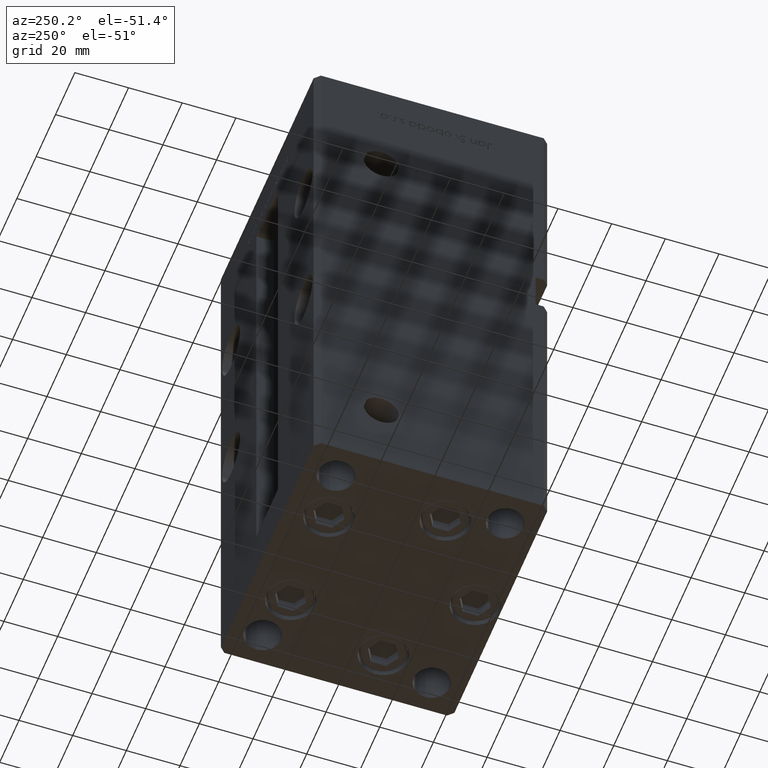
[diagram: clean part render]
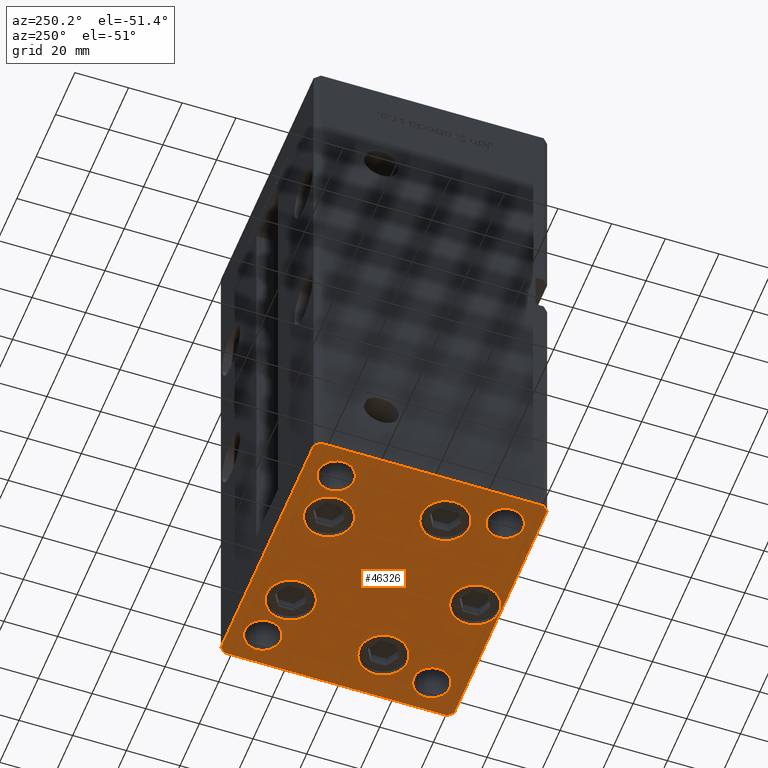
[diagram: same view with one face highlighted and labeled with its STEP entity id]
A machine part, auxiliary view. The second image highlights one B-rep face of the part: STEP entity #46326.
In plain terms, the highlighted planar face has unit normal (0, 0, -1).
Its self-contained STEP definition (entity closure, byte-faithful):
#475 = EDGE_CURVE ( 'NONE', #3109, #52060, #8247, .T. ) ;
#696 = VECTOR ( 'NONE', #11930, 1000.000000000000000 ) ;
#1333 = EDGE_CURVE ( 'NONE', #39524, #7485, #22001, .T. ) ;
#1503 = DIRECTION ( 'NONE',  ( 0.7071067811865474617, -0.7071067811865474617, 0.000000000000000000 ) ) ;
#1707 = VECTOR ( 'NONE', #17261, 1000.000000000000000 ) ;
#1717 = EDGE_CURVE ( 'NONE', #11860, #27413, #8325, .T. ) ;
#1846 = CARTESIAN_POINT ( 'NONE',  ( 19.82068048781373193, 27.62500000000000000, 0.000000000000000000 ) ) ;
#2484 = FACE_BOUND ( 'NONE', #25498, .T. ) ;
#2563 = EDGE_CURVE ( 'NONE', #41122, #20947, #21209, .T. ) ;
#2718 = DIRECTION ( 'NONE',  ( 0.000000000000000000, -0.000000000000000000, -1.000000000000000000 ) ) ;
#2742 = FACE_BOUND ( 'NONE', #52879, .T. ) ;
#2824 = AXIS2_PLACEMENT_3D ( 'NONE', #31973, #6681, #3438 ) ;
#3005 = PLANE ( 'NONE',  #9670 ) ;
#3054 = ORIENTED_EDGE ( 'NONE', *, *, #47745, .T. ) ;
#3109 = VERTEX_POINT ( 'NONE', #26250 ) ;
#3166 = EDGE_CURVE ( 'NONE', #52738, #37018, #22742, .T. ) ;
#3438 = DIRECTION ( 'NONE',  ( 1.000000000000000000, 0.000000000000000000, 0.000000000000000000 ) ) ;
#3516 = VERTEX_POINT ( 'NONE', #14806 ) ;
#3960 = EDGE_LOOP ( 'NONE', ( #33991, #52278 ) ) ;
#3971 = EDGE_LOOP ( 'NONE', ( #49308, #9066 ) ) ;
#4000 = DIRECTION ( 'NONE',  ( 1.000000000000000000, 0.000000000000000000, 0.000000000000000000 ) ) ;
#4204 = CARTESIAN_POINT ( 'NONE',  ( 44.75000000000000000, 31.49999999999999289, 0.000000000000000000 ) ) ;
#4363 = CARTESIAN_POINT ( 'NONE',  ( -19.82068048781373903, 27.62499999999999645, 0.000000000000000000 ) ) ;
#4811 = CARTESIAN_POINT ( 'NONE',  ( 19.82068048781373193, 27.62500000000000000, 0.000000000000000000 ) ) ;
#5110 = DIRECTION ( 'NONE',  ( 1.000000000000000000, 0.000000000000000000, 0.000000000000000000 ) ) ;
#5323 = ORIENTED_EDGE ( 'NONE', *, *, #22522, .T. ) ;
#5354 = EDGE_CURVE ( 'NONE', #39382, #49912, #6658, .T. ) ;
#5387 = DIRECTION ( 'NONE',  ( 0.000000000000000000, -0.000000000000000000, -1.000000000000000000 ) ) ;
#5629 = CARTESIAN_POINT ( 'NONE',  ( -32.05550741379015278, -11.33333333333333925, 0.000000000000000000 ) ) ;
#5780 = AXIS2_PLACEMENT_3D ( 'NONE', #4363, #20788, #44990 ) ;
#5833 = CIRCLE ( 'NONE', #10138, 6.749999999999999112 ) ;
#5885 = VERTEX_POINT ( 'NONE', #45336 ) ;
#6415 = DIRECTION ( 'NONE',  ( 0.000000000000000000, -0.000000000000000000, -1.000000000000000000 ) ) ;
#6452 = DIRECTION ( 'NONE',  ( 0.000000000000000000, -0.000000000000000000, -1.000000000000000000 ) ) ;
#6588 = EDGE_CURVE ( 'NONE', #49912, #39382, #28186, .T. ) ;
#6658 = CIRCLE ( 'NONE', #5780, 9.000000000000000000 ) ;
#6681 = DIRECTION ( 'NONE',  ( 0.000000000000000000, -0.000000000000000000, -1.000000000000000000 ) ) ;
#6802 = LINE ( 'NONE', #10837, #696 ) ;
#6842 = VECTOR ( 'NONE', #9433, 1000.000000000000000 ) ;
#6870 = CARTESIAN_POINT ( 'NONE',  ( -50.00000000000000000, -41.50000000000000000, 0.000000000000000000 ) ) ;
#6912 = EDGE_CURVE ( 'NONE', #5885, #40963, #18967, .T. ) ;
#6919 = DIRECTION ( 'NONE',  ( 0.000000000000000000, -0.000000000000000000, -1.000000000000000000 ) ) ;
#7055 = FACE_OUTER_BOUND ( 'NONE', #17440, .T. ) ;
#7322 = CARTESIAN_POINT ( 'NONE',  ( 0.000000000000000000, 0.000000000000000000, 0.000000000000000000 ) ) ;
#7485 = VERTEX_POINT ( 'NONE', #21323 ) ;
#7558 = CARTESIAN_POINT ( 'NONE',  ( -23.05550741379014923, -11.33333333333333748, 0.000000000000000000 ) ) ;
#7562 = DIRECTION ( 'NONE',  ( 1.000000000000000000, 0.000000000000000000, 0.000000000000000000 ) ) ;
#7857 = EDGE_CURVE ( 'NONE', #37018, #30485, #12869, .T. ) ;
#7899 = ORIENTED_EDGE ( 'NONE', *, *, #6912, .T. ) ;
#8247 = CIRCLE ( 'NONE', #9148, 9.000000000000000000 ) ;
#8325 = CIRCLE ( 'NONE', #38357, 8.999999999999998224 ) ;
#8484 = VECTOR ( 'NONE', #21464, 1000.000000000000000 ) ;
#8512 = CARTESIAN_POINT ( 'NONE',  ( 47.99999999999999289, -43.50000000000001421, 0.000000000000000000 ) ) ;
#8650 = CIRCLE ( 'NONE', #42139, 6.749999999999999112 ) ;
#8667 = DIRECTION ( 'NONE',  ( -0.000000000000000000, 0.000000000000000000, 1.000000000000000000 ) ) ;
#8834 = EDGE_CURVE ( 'NONE', #10949, #31789, #29150, .T. ) ;
#9024 = CARTESIAN_POINT ( 'NONE',  ( 41.05550741379015278, -11.33333333333332860, 0.000000000000000000 ) ) ;
#9066 = ORIENTED_EDGE ( 'NONE', *, *, #475, .T. ) ;
#9148 = AXIS2_PLACEMENT_3D ( 'NONE', #44426, #2718, #7562 ) ;
#9371 = ORIENTED_EDGE ( 'NONE', *, *, #29681, .T. ) ;
#9433 = DIRECTION ( 'NONE',  ( 0.7071067811865463515, 0.7071067811865487940, 0.000000000000000000 ) ) ;
#9579 = VERTEX_POINT ( 'NONE', #25046 ) ;
#9594 = LINE ( 'NONE', #34337, #13415 ) ;
#9669 = DIRECTION ( 'NONE',  ( -0.000000000000000000, 0.000000000000000000, 1.000000000000000000 ) ) ;
#9670 = AXIS2_PLACEMENT_3D ( 'NONE', #7322, #47693, #35575 ) ;
#9673 = DIRECTION ( 'NONE',  ( 0.000000000000000000, -0.000000000000000000, -1.000000000000000000 ) ) ;
#9921 = CARTESIAN_POINT ( 'NONE',  ( -8.999999999999996447, -34.00000000000000000, 0.000000000000000000 ) ) ;
#10138 = AXIS2_PLACEMENT_3D ( 'NONE', #30187, #21851, #21593 ) ;
#10457 = DIRECTION ( 'NONE',  ( 1.000000000000000000, 0.000000000000000000, 0.000000000000000000 ) ) ;
#10458 = EDGE_CURVE ( 'NONE', #15043, #52738, #44554, .T. ) ;
#10788 = ORIENTED_EDGE ( 'NONE', *, *, #1333, .T. ) ;
#10837 = CARTESIAN_POINT ( 'NONE',  ( -48.00000000000000711, 43.49999999999996447, 0.000000000000000000 ) ) ;
#10949 = VERTEX_POINT ( 'NONE', #7558 ) ;
#11137 = EDGE_CURVE ( 'NONE', #34654, #15043, #46813, .T. ) ;
#11369 = FACE_BOUND ( 'NONE', #41315, .T. ) ;
#11796 = CIRCLE ( 'NONE', #19548, 9.000000000000000000 ) ;
#11860 = VERTEX_POINT ( 'NONE', #31001 ) ;
#11896 = DIRECTION ( 'NONE',  ( 0.000000000000000000, -0.000000000000000000, -1.000000000000000000 ) ) ;
#11930 = DIRECTION ( 'NONE',  ( -0.7071067811865463515, -0.7071067811865487940, 0.000000000000000000 ) ) ;
#11985 = CARTESIAN_POINT ( 'NONE',  ( 47.99999999999990763, 43.50000000000000000, 0.000000000000000000 ) ) ;
#12032 = EDGE_CURVE ( 'NONE', #33720, #34654, #45772, .T. ) ;
#12616 = EDGE_CURVE ( 'NONE', #36194, #34633, #52551, .T. ) ;
#12869 = LINE ( 'NONE', #38124, #8484 ) ;
#13415 = VECTOR ( 'NONE', #1503, 1000.000000000000114 ) ;
#13488 = CIRCLE ( 'NONE', #38405, 6.749999999999999112 ) ;
#13564 = CIRCLE ( 'NONE', #40162, 8.999999999999998224 ) ;
#13598 = AXIS2_PLACEMENT_3D ( 'NONE', #30906, #6415, #27394 ) ;
#13639 = DIRECTION ( 'NONE',  ( 1.000000000000000000, 0.000000000000000000, 0.000000000000000000 ) ) ;
#13922 = ORIENTED_EDGE ( 'NONE', *, *, #22760, .T. ) ;
#14249 = CARTESIAN_POINT ( 'NONE',  ( 47.99999999999999289, -43.50000000000001421, 0.000000000000000000 ) ) ;
#14403 = CARTESIAN_POINT ( 'NONE',  ( -50.00000000000000711, 41.49999999999995026, 0.000000000000000000 ) ) ;
#14806 = CARTESIAN_POINT ( 'NONE',  ( -44.75000000000000000, 31.50000000000000000, 0.000000000000000000 ) ) ;
#15043 = VERTEX_POINT ( 'NONE', #51443 ) ;
#15121 = CIRCLE ( 'NONE', #37501, 6.749999999999999112 ) ;
#15400 = EDGE_CURVE ( 'NONE', #31789, #10949, #32970, .T. ) ;
#16517 = ORIENTED_EDGE ( 'NONE', *, *, #8834, .T. ) ;
#16725 = CARTESIAN_POINT ( 'NONE',  ( -47.99999999999999289, -43.50000000000001421, 0.000000000000000000 ) ) ;
#17261 = DIRECTION ( 'NONE',  ( 1.000000000000000000, 0.000000000000000000, 0.000000000000000000 ) ) ;
#17440 = EDGE_LOOP ( 'NONE', ( #13922, #22405, #52745, #37897, #18681, #19882, #48124, #7899 ) ) ;
#18066 = ORIENTED_EDGE ( 'NONE', *, *, #27956, .F. ) ;
#18189 = CARTESIAN_POINT ( 'NONE',  ( 49.99999999999992184, 41.49999999999998579, 0.000000000000000000 ) ) ;
#18327 = CARTESIAN_POINT ( 'NONE',  ( -28.82068048781373548, 27.62499999999999645, 0.000000000000000000 ) ) ;
#18681 = ORIENTED_EDGE ( 'NONE', *, *, #3166, .T. ) ;
#18967 = LINE ( 'NONE', #14403, #53106 ) ;
#19222 = DIRECTION ( 'NONE',  ( 0.000000000000000000, -0.000000000000000000, -1.000000000000000000 ) ) ;
#19548 = AXIS2_PLACEMENT_3D ( 'NONE', #41894, #33824, #13639 ) ;
#19622 = AXIS2_PLACEMENT_3D ( 'NONE', #52581, #19222, #44768 ) ;
#19882 = ORIENTED_EDGE ( 'NONE', *, *, #7857, .T. ) ;
#19963 = DIRECTION ( 'NONE',  ( 1.000000000000000000, 0.000000000000000000, 0.000000000000000000 ) ) ;
#20186 = CARTESIAN_POINT ( 'NONE',  ( -44.74999999999999289, -31.50000000000000000, 0.000000000000000000 ) ) ;
#20788 = DIRECTION ( 'NONE',  ( 0.000000000000000000, -0.000000000000000000, -1.000000000000000000 ) ) ;
#20947 = VERTEX_POINT ( 'NONE', #33054 ) ;
#21013 = ORIENTED_EDGE ( 'NONE', *, *, #25813, .F. ) ;
#21209 = CIRCLE ( 'NONE', #50435, 9.000000000000001776 ) ;
#21323 = CARTESIAN_POINT ( 'NONE',  ( -31.24999999999999289, -31.50000000000000000, 0.000000000000000000 ) ) ;
#21464 = DIRECTION ( 'NONE',  ( -1.000000000000000000, -3.614007241618350743E-16, 0.000000000000000000 ) ) ;
#21593 = DIRECTION ( 'NONE',  ( 1.000000000000000000, 0.000000000000000000, 0.000000000000000000 ) ) ;
#21595 = ORIENTED_EDGE ( 'NONE', *, *, #12616, .F. ) ;
#21851 = DIRECTION ( 'NONE',  ( -0.000000000000000000, 0.000000000000000000, 1.000000000000000000 ) ) ;
#22001 = CIRCLE ( 'NONE', #24565, 6.749999999999999112 ) ;
#22302 = CARTESIAN_POINT ( 'NONE',  ( 38.00000000000000000, 31.49999999999999289, 0.000000000000000000 ) ) ;
#22405 = ORIENTED_EDGE ( 'NONE', *, *, #12032, .T. ) ;
#22522 = EDGE_CURVE ( 'NONE', #41328, #9579, #15121, .T. ) ;
#22742 = LINE ( 'NONE', #18189, #50470 ) ;
#22760 = EDGE_CURVE ( 'NONE', #40963, #33720, #9594, .T. ) ;
#24007 = FACE_BOUND ( 'NONE', #3971, .T. ) ;
#24017 = CARTESIAN_POINT ( 'NONE',  ( 31.25000000000000000, -31.49999999999999289, 0.000000000000000000 ) ) ;
#24565 = AXIS2_PLACEMENT_3D ( 'NONE', #48482, #11896, #19963 ) ;
#24772 = CIRCLE ( 'NONE', #19622, 6.749999999999999112 ) ;
#25046 = CARTESIAN_POINT ( 'NONE',  ( 44.75000000000000000, -31.49999999999999289, 0.000000000000000000 ) ) ;
#25078 = CARTESIAN_POINT ( 'NONE',  ( 38.00000000000000000, 31.49999999999999289, 0.000000000000000000 ) ) ;
#25106 = ORIENTED_EDGE ( 'NONE', *, *, #34222, .T. ) ;
#25498 = EDGE_LOOP ( 'NONE', ( #21013, #21595 ) ) ;
#25661 = CIRCLE ( 'NONE', #39384, 9.000000000000001776 ) ;
#25703 = EDGE_LOOP ( 'NONE', ( #28680, #18066 ) ) ;
#25813 = EDGE_CURVE ( 'NONE', #34633, #36194, #13488, .T. ) ;
#26250 = CARTESIAN_POINT ( 'NONE',  ( 9.000000000000003553, -34.00000000000000000, 0.000000000000000000 ) ) ;
#27129 = EDGE_CURVE ( 'NONE', #52060, #3109, #11796, .T. ) ;
#27394 = DIRECTION ( 'NONE',  ( 1.000000000000000000, 0.000000000000000000, 0.000000000000000000 ) ) ;
#27413 = VERTEX_POINT ( 'NONE', #40502 ) ;
#27605 = DIRECTION ( 'NONE',  ( -1.003213576468515193E-15, 1.000000000000000000, 0.000000000000000000 ) ) ;
#27640 = CARTESIAN_POINT ( 'NONE',  ( 38.00000000000000000, -31.49999999999999289, 0.000000000000000000 ) ) ;
#27712 = EDGE_CURVE ( 'NONE', #30485, #5885, #6802, .T. ) ;
#27956 = EDGE_CURVE ( 'NONE', #3516, #52210, #5833, .T. ) ;
#28186 = CIRCLE ( 'NONE', #13598, 9.000000000000000000 ) ;
#28680 = ORIENTED_EDGE ( 'NONE', *, *, #50322, .F. ) ;
#29034 = DIRECTION ( 'NONE',  ( 0.000000000000000000, -0.000000000000000000, -1.000000000000000000 ) ) ;
#29150 = CIRCLE ( 'NONE', #36003, 9.000000000000001776 ) ;
#29681 = EDGE_CURVE ( 'NONE', #7485, #39524, #24772, .T. ) ;
#30180 = ORIENTED_EDGE ( 'NONE', *, *, #6588, .T. ) ;
#30187 = CARTESIAN_POINT ( 'NONE',  ( -38.00000000000000000, 31.50000000000000000, 0.000000000000000000 ) ) ;
#30485 = VERTEX_POINT ( 'NONE', #37906 ) ;
#30906 = CARTESIAN_POINT ( 'NONE',  ( -19.82068048781373903, 27.62499999999999645, 0.000000000000000000 ) ) ;
#31001 = CARTESIAN_POINT ( 'NONE',  ( 10.82068048781373193, 27.62500000000000000, 0.000000000000000000 ) ) ;
#31275 = FACE_BOUND ( 'NONE', #39848, .T. ) ;
#31731 = CARTESIAN_POINT ( 'NONE',  ( 32.05550741379015278, -11.33333333333333037, 0.000000000000000000 ) ) ;
#31785 = EDGE_CURVE ( 'NONE', #27413, #11860, #13564, .T. ) ;
#31789 = VERTEX_POINT ( 'NONE', #42234 ) ;
#31809 = FACE_BOUND ( 'NONE', #25703, .T. ) ;
#31973 = CARTESIAN_POINT ( 'NONE',  ( -32.05550741379015278, -11.33333333333333925, 0.000000000000000000 ) ) ;
#32177 = CARTESIAN_POINT ( 'NONE',  ( 50.00000000000000000, -41.49999999999999289, 0.000000000000000000 ) ) ;
#32970 = CIRCLE ( 'NONE', #2824, 9.000000000000001776 ) ;
#32992 = DIRECTION ( 'NONE',  ( 0.000000000000000000, -0.000000000000000000, -1.000000000000000000 ) ) ;
#32998 = ORIENTED_EDGE ( 'NONE', *, *, #15400, .T. ) ;
#33054 = CARTESIAN_POINT ( 'NONE',  ( 23.05550741379014923, -11.33333333333333037, 0.000000000000000000 ) ) ;
#33720 = VERTEX_POINT ( 'NONE', #41527 ) ;
#33824 = DIRECTION ( 'NONE',  ( 0.000000000000000000, -0.000000000000000000, -1.000000000000000000 ) ) ;
#33902 = DIRECTION ( 'NONE',  ( 1.000000000000000000, 0.000000000000000000, 0.000000000000000000 ) ) ;
#33991 = ORIENTED_EDGE ( 'NONE', *, *, #1717, .T. ) ;
#34178 = CARTESIAN_POINT ( 'NONE',  ( 38.00000000000000000, -31.49999999999999289, 0.000000000000000000 ) ) ;
#34222 = EDGE_CURVE ( 'NONE', #20947, #41122, #25661, .T. ) ;
#34337 = CARTESIAN_POINT ( 'NONE',  ( -50.00000000000000000, -41.50000000000000000, 0.000000000000000000 ) ) ;
#34438 = DIRECTION ( 'NONE',  ( 1.000000000000000000, 0.000000000000000000, 0.000000000000000000 ) ) ;
#34491 = AXIS2_PLACEMENT_3D ( 'NONE', #37103, #36295, #44634 ) ;
#34591 = DIRECTION ( 'NONE',  ( -0.7071067811865474617, 0.7071067811865474617, 0.000000000000000000 ) ) ;
#34633 = VERTEX_POINT ( 'NONE', #4204 ) ;
#34654 = VERTEX_POINT ( 'NONE', #8512 ) ;
#35370 = DIRECTION ( 'NONE',  ( 8.360113137237628665E-17, -1.000000000000000000, 0.000000000000000000 ) ) ;
#35575 = DIRECTION ( 'NONE',  ( 1.000000000000000000, 0.000000000000000000, 0.000000000000000000 ) ) ;
#35976 = DIRECTION ( 'NONE',  ( 1.000000000000000000, 0.000000000000000000, 0.000000000000000000 ) ) ;
#36003 = AXIS2_PLACEMENT_3D ( 'NONE', #5629, #47061, #33902 ) ;
#36194 = VERTEX_POINT ( 'NONE', #45182 ) ;
#36295 = DIRECTION ( 'NONE',  ( -0.000000000000000000, 0.000000000000000000, 1.000000000000000000 ) ) ;
#36380 = FACE_BOUND ( 'NONE', #46749, .T. ) ;
#37018 = VERTEX_POINT ( 'NONE', #11985 ) ;
#37103 = CARTESIAN_POINT ( 'NONE',  ( -38.00000000000000000, 31.50000000000000000, 0.000000000000000000 ) ) ;
#37501 = AXIS2_PLACEMENT_3D ( 'NONE', #27640, #6919, #35976 ) ;
#37897 = ORIENTED_EDGE ( 'NONE', *, *, #10458, .T. ) ;
#37906 = CARTESIAN_POINT ( 'NONE',  ( -48.00000000000000711, 43.49999999999996447, 0.000000000000000000 ) ) ;
#38124 = CARTESIAN_POINT ( 'NONE',  ( 47.99999999999990763, 43.50000000000000000, 0.000000000000000000 ) ) ;
#38357 = AXIS2_PLACEMENT_3D ( 'NONE', #4811, #29034, #4000 ) ;
#38405 = AXIS2_PLACEMENT_3D ( 'NONE', #25078, #8667, #49839 ) ;
#39382 = VERTEX_POINT ( 'NONE', #18327 ) ;
#39384 = AXIS2_PLACEMENT_3D ( 'NONE', #49419, #32992, #40532 ) ;
#39387 = ORIENTED_EDGE ( 'NONE', *, *, #2563, .T. ) ;
#39446 = EDGE_LOOP ( 'NONE', ( #3054, #5323 ) ) ;
#39455 = VECTOR ( 'NONE', #27605, 1000.000000000000000 ) ;
#39524 = VERTEX_POINT ( 'NONE', #20186 ) ;
#39807 = CARTESIAN_POINT ( 'NONE',  ( -10.82068048781373903, 27.62499999999999645, 0.000000000000000000 ) ) ;
#39848 = EDGE_LOOP ( 'NONE', ( #43059, #30180 ) ) ;
#40162 = AXIS2_PLACEMENT_3D ( 'NONE', #1846, #9673, #5110 ) ;
#40502 = CARTESIAN_POINT ( 'NONE',  ( 28.82068048781372838, 27.62500000000000000, 0.000000000000000000 ) ) ;
#40532 = DIRECTION ( 'NONE',  ( 1.000000000000000000, 0.000000000000000000, 0.000000000000000000 ) ) ;
#40963 = VERTEX_POINT ( 'NONE', #6870 ) ;
#41122 = VERTEX_POINT ( 'NONE', #9024 ) ;
#41315 = EDGE_LOOP ( 'NONE', ( #32998, #16517 ) ) ;
#41328 = VERTEX_POINT ( 'NONE', #24017 ) ;
#41527 = CARTESIAN_POINT ( 'NONE',  ( -47.99999999999999289, -43.50000000000001421, 0.000000000000000000 ) ) ;
#41894 = CARTESIAN_POINT ( 'NONE',  ( 4.163799117101000559E-15, -34.00000000000000000, 0.000000000000000000 ) ) ;
#42139 = AXIS2_PLACEMENT_3D ( 'NONE', #34178, #5387, #34438 ) ;
#42234 = CARTESIAN_POINT ( 'NONE',  ( -41.05550741379015278, -11.33333333333333925, 0.000000000000000000 ) ) ;
#43059 = ORIENTED_EDGE ( 'NONE', *, *, #5354, .T. ) ;
#43084 = CIRCLE ( 'NONE', #34491, 6.749999999999999112 ) ;
#44426 = CARTESIAN_POINT ( 'NONE',  ( 4.163799117101000559E-15, -34.00000000000000000, 0.000000000000000000 ) ) ;
#44554 = LINE ( 'NONE', #32177, #39455 ) ;
#44634 = DIRECTION ( 'NONE',  ( 1.000000000000000000, 0.000000000000000000, 0.000000000000000000 ) ) ;
#44722 = FACE_BOUND ( 'NONE', #39446, .T. ) ;
#44768 = DIRECTION ( 'NONE',  ( 1.000000000000000000, 0.000000000000000000, 0.000000000000000000 ) ) ;
#44990 = DIRECTION ( 'NONE',  ( 1.000000000000000000, 0.000000000000000000, 0.000000000000000000 ) ) ;
#45182 = CARTESIAN_POINT ( 'NONE',  ( 31.25000000000000000, 31.49999999999999289, 0.000000000000000000 ) ) ;
#45336 = CARTESIAN_POINT ( 'NONE',  ( -50.00000000000000711, 41.49999999999995026, 0.000000000000000000 ) ) ;
#45772 = LINE ( 'NONE', #16725, #1707 ) ;
#46326 = ADVANCED_FACE ( 'NONE', ( #31275, #52264, #2742, #24007, #11369, #2484, #44722, #31809, #7055, #36380 ), #3005, .T. ) ;
#46749 = EDGE_LOOP ( 'NONE', ( #9371, #10788 ) ) ;
#46813 = LINE ( 'NONE', #14249, #6842 ) ;
#47061 = DIRECTION ( 'NONE',  ( 0.000000000000000000, -0.000000000000000000, -1.000000000000000000 ) ) ;
#47100 = DIRECTION ( 'NONE',  ( 1.000000000000000000, 0.000000000000000000, 0.000000000000000000 ) ) ;
#47693 = DIRECTION ( 'NONE',  ( -0.000000000000000000, 0.000000000000000000, 1.000000000000000000 ) ) ;
#47745 = EDGE_CURVE ( 'NONE', #9579, #41328, #8650, .T. ) ;
#48124 = ORIENTED_EDGE ( 'NONE', *, *, #27712, .T. ) ;
#48240 = AXIS2_PLACEMENT_3D ( 'NONE', #22302, #9669, #10457 ) ;
#48482 = CARTESIAN_POINT ( 'NONE',  ( -37.99999999999999289, -31.50000000000000000, 0.000000000000000000 ) ) ;
#49045 = CARTESIAN_POINT ( 'NONE',  ( 49.99999999999992184, 41.49999999999998579, 0.000000000000000000 ) ) ;
#49308 = ORIENTED_EDGE ( 'NONE', *, *, #27129, .T. ) ;
#49419 = CARTESIAN_POINT ( 'NONE',  ( 32.05550741379015278, -11.33333333333333037, 0.000000000000000000 ) ) ;
#49447 = CARTESIAN_POINT ( 'NONE',  ( -31.25000000000000000, 31.50000000000000000, 0.000000000000000000 ) ) ;
#49839 = DIRECTION ( 'NONE',  ( 1.000000000000000000, 0.000000000000000000, 0.000000000000000000 ) ) ;
#49912 = VERTEX_POINT ( 'NONE', #39807 ) ;
#50322 = EDGE_CURVE ( 'NONE', #52210, #3516, #43084, .T. ) ;
#50435 = AXIS2_PLACEMENT_3D ( 'NONE', #31731, #6452, #47100 ) ;
#50470 = VECTOR ( 'NONE', #34591, 1000.000000000000114 ) ;
#51443 = CARTESIAN_POINT ( 'NONE',  ( 50.00000000000000000, -41.49999999999999289, 0.000000000000000000 ) ) ;
#52060 = VERTEX_POINT ( 'NONE', #9921 ) ;
#52210 = VERTEX_POINT ( 'NONE', #49447 ) ;
#52264 = FACE_BOUND ( 'NONE', #3960, .T. ) ;
#52278 = ORIENTED_EDGE ( 'NONE', *, *, #31785, .T. ) ;
#52551 = CIRCLE ( 'NONE', #48240, 6.749999999999999112 ) ;
#52581 = CARTESIAN_POINT ( 'NONE',  ( -37.99999999999999289, -31.50000000000000000, 0.000000000000000000 ) ) ;
#52738 = VERTEX_POINT ( 'NONE', #49045 ) ;
#52745 = ORIENTED_EDGE ( 'NONE', *, *, #11137, .T. ) ;
#52879 = EDGE_LOOP ( 'NONE', ( #25106, #39387 ) ) ;
#53106 = VECTOR ( 'NONE', #35370, 1000.000000000000000 ) ;